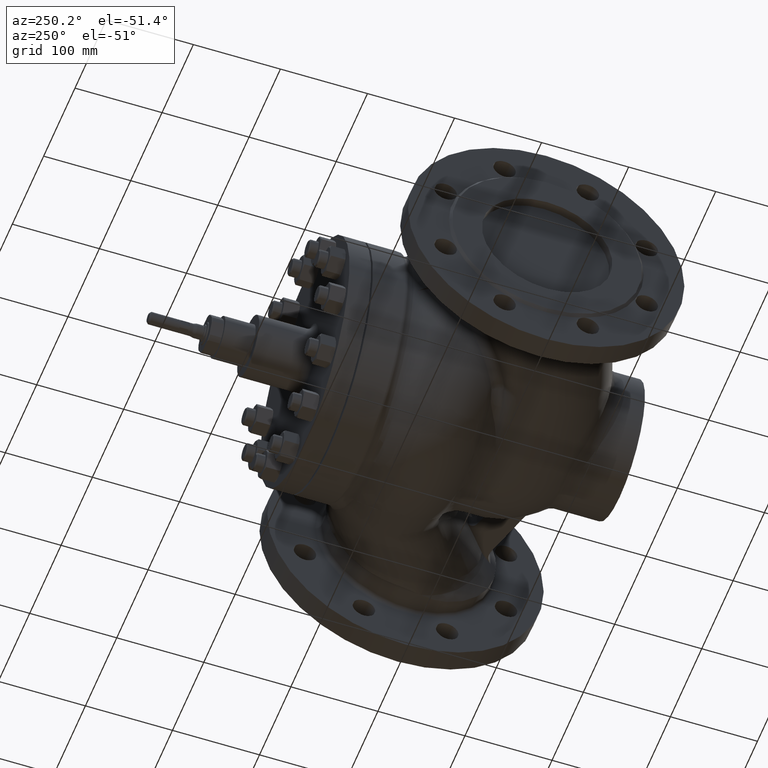
[diagram: clean part render]
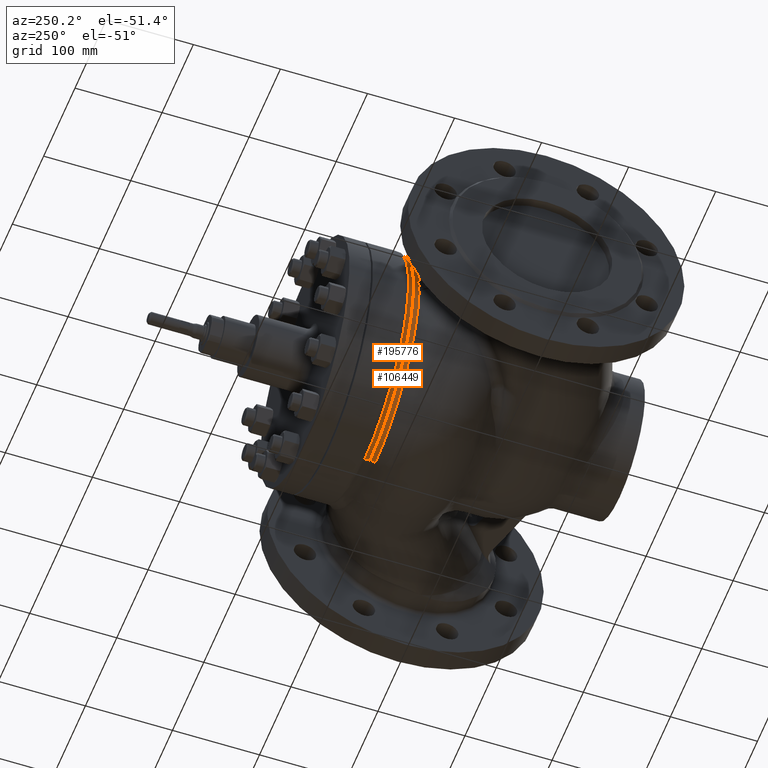
[diagram: same view with one multi-face feature highlighted, each face labeled with its STEP entity id]
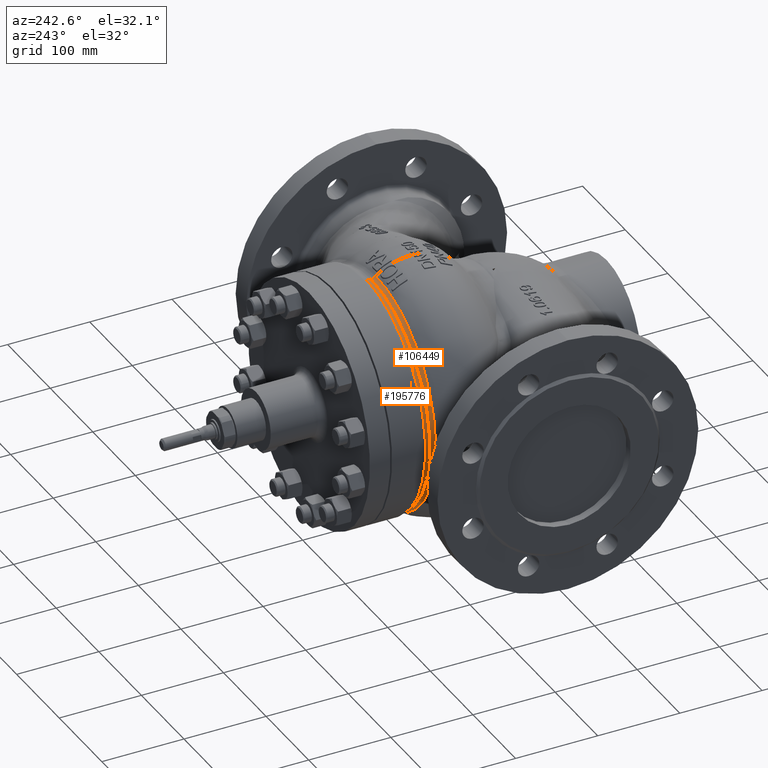
[diagram: same view with one multi-face feature highlighted, each face labeled with its STEP entity id]
A machine part, auxiliary view. The highlighted faces form ONE feature: a constant-radius fillet chain: 2 tangent blend faces with common blend radius 10 mm. The faces share edges in the B-rep.
A second angle (auxiliary view) of the same feature is appended — it is thin or edge-on in the first view.
Their STEP definitions:
[1] entity #106449 (Torus):
#28 = CARTESIAN_POINT ( 'NONE',  ( -139.4163269555714600, 112.6222677090639200, -7.500000000000000000 ) ) ;
#2465 = DIRECTION ( 'NONE',  ( 0.0000000000000000000, 0.0000000000000000000, 1.000000000000000000 ) ) ;
#4627 = CARTESIAN_POINT ( 'NONE',  ( 0.0000000000000000000, 117.0600714679255700, 148.5792709189137500 ) ) ;
#5024 = EDGE_CURVE ( 'NONE', #93388, #21869, #31355, .T. ) ;
#10320 = CARTESIAN_POINT ( 'NONE',  ( -140.3574335819797100, 111.0889785199827000, -7.500000000000000000 ) ) ;
#12947 = DIRECTION ( 'NONE',  ( 0.0000000000000000000, 0.0000000000000000000, 1.000000000000000000 ) ) ;
#12987 = ORIENTED_EDGE ( 'NONE', *, *, #73720, .F. ) ;
#18270 = EDGE_LOOP ( 'NONE', ( #129980, #82277, #144561, #49885, #12987, #26177, #143485, #149420, #175779 ) ) ;
#19089 = DIRECTION ( 'NONE',  ( 1.000000000000000000, 0.0000000000000000000, 1.224646799147353200E-016 ) ) ;
#20320 = DIRECTION ( 'NONE',  ( 0.0000000000000000000, 0.0000000000000000000, 1.000000000000000000 ) ) ;
#20964 = CIRCLE ( 'NONE', #122953, 10.00000000000000900 ) ;
#21387 = AXIS2_PLACEMENT_3D ( 'NONE', #189470, #110936, #2465 ) ;
#21869 = VERTEX_POINT ( 'NONE', #184158 ) ;
#22734 = CARTESIAN_POINT ( 'NONE',  ( -140.0087157920484100, 111.5795445097228200, 7.500000000000000900 ) ) ;
#26177 = ORIENTED_EDGE ( 'NONE', *, *, #74768, .F. ) ;
#27120 = CARTESIAN_POINT ( 'NONE',  ( -140.1995432107397300, 111.5700907105966500, -2.508708336358790100 ) ) ;
#30363 = CARTESIAN_POINT ( 'NONE',  ( 0.0000000000000000000, 111.0889785199827000, 140.5576720130204900 ) ) ;
#31355 = CIRCLE ( 'NONE', #52651, 138.5792709189137200 ) ;
#34822 = FACE_OUTER_BOUND ( 'NONE', #18270, .T. ) ;
#38438 = CARTESIAN_POINT ( 'NONE',  ( -139.5495879922406500, 112.3535592720482300, 7.500000000000000900 ) ) ;
#46045 = CARTESIAN_POINT ( 'NONE',  ( 0.0000000000000000000, 111.0889785199827000, 0.0000000000000000000 ) ) ;
#49885 = ORIENTED_EDGE ( 'NONE', *, *, #186894, .T. ) ;
#52651 = AXIS2_PLACEMENT_3D ( 'NONE', #122485, #182613, #183278 ) ;
#55500 = AXIS2_PLACEMENT_3D ( 'NONE', #4627, #113791, #20320 ) ;
#56525 = VERTEX_POINT ( 'NONE', #75444 ) ;
#58284 = B_SPLINE_CURVE_WITH_KNOTS ( 'NONE', 3,
 ( #82907, #114297, #161379, #67939 ),
 .UNSPECIFIED., .F., .F.,
 ( 4, 4 ),
 ( 0.01235766206393574200, 0.02009588435740006900 ),
 .UNSPECIFIED. ) ;
#61735 = DIRECTION ( 'NONE',  ( 0.0000000000000000000, 0.0000000000000000000, 1.000000000000000000 ) ) ;
#62187 = CARTESIAN_POINT ( 'NONE',  ( -140.3574335819797100, 111.0889785199827000, -7.500000000000000000 ) ) ;
#63133 = B_SPLINE_CURVE_WITH_KNOTS ( 'NONE', 3,
 ( #89855, #27120, #74193, #199041 ),
 .UNSPECIFIED., .F., .F.,
 ( 4, 4 ),
 ( -8.371953520916540100E-005, 0.007654502758255160600 ),
 .UNSPECIFIED. ) ;
#67939 = CARTESIAN_POINT ( 'NONE',  ( -140.5576720130204900, 111.0889785199827200, 0.0000000000000000000 ) ) ;
#69153 = CARTESIAN_POINT ( 'NONE',  ( -140.1783376294678200, 111.3292342450265600, 7.500000000000000000 ) ) ;
#69835 = CARTESIAN_POINT ( 'NONE',  ( 1.697106605590215500E-014, 117.0600714679255700, -138.5792709189137200 ) ) ;
#71013 = VERTEX_POINT ( 'NONE', #175050 ) ;
#73720 = EDGE_CURVE ( 'NONE', #128123, #110249, #63133, .T. ) ;
#74193 = CARTESIAN_POINT ( 'NONE',  ( -139.8177160344932900, 112.0830394263379000, -5.009677336422936600 ) ) ;
#74768 = EDGE_CURVE ( 'NONE', #76263, #128123, #58284, .T. ) ;
#75444 = CARTESIAN_POINT ( 'NONE',  ( -140.3574335819797100, 111.0889785199827000, 7.500000000000000000 ) ) ;
#76263 = VERTEX_POINT ( 'NONE', #77984 ) ;
#77826 = CARTESIAN_POINT ( 'NONE',  ( -140.0087157920484100, 111.5795445097228200, -7.500000000000000900 ) ) ;
#77984 = CARTESIAN_POINT ( 'NONE',  ( -139.4163269555714600, 112.6222677090639200, 7.500000000000000000 ) ) ;
#79408 = CARTESIAN_POINT ( 'NONE',  ( -140.5576720130204900, 111.0889785199827200, 0.0000000000000000000 ) ) ;
#82277 = ORIENTED_EDGE ( 'NONE', *, *, #159276, .T. ) ;
#82907 = CARTESIAN_POINT ( 'NONE',  ( -139.4163269555714600, 112.6222677090639200, 7.500000000000000000 ) ) ;
#89855 = CARTESIAN_POINT ( 'NONE',  ( -140.5576720130204900, 111.0889785199827200, 0.0000000000000000000 ) ) ;
#93271 = EDGE_CURVE ( 'NONE', #56525, #76263, #121208, .T. ) ;
#93388 = VERTEX_POINT ( 'NONE', #69835 ) ;
#93510 = CARTESIAN_POINT ( 'NONE',  ( -139.5495879922406500, 112.3535592720482300, -7.500000000000000900 ) ) ;
#99255 = EDGE_CURVE ( 'NONE', #56525, #142991, #115953, .T. ) ;
#103759 = VERTEX_POINT ( 'NONE', #10320 ) ;
#106425 = DIRECTION ( 'NONE',  ( -0.0000000000000000000, 1.000000000000000000, -0.0000000000000000000 ) ) ;
#106449 = ADVANCED_FACE ( 'NONE', ( #34822 ), #154423, .F. ) ;
#110120 = AXIS2_PLACEMENT_3D ( 'NONE', #199902, #106425, #12947 ) ;
#110249 = VERTEX_POINT ( 'NONE', #200540 ) ;
#110936 = DIRECTION ( 'NONE',  ( -0.0000000000000000000, 1.000000000000000000, -0.0000000000000000000 ) ) ;
#111209 = EDGE_CURVE ( 'NONE', #21869, #142991, #159165, .T. ) ;
#112553 = CARTESIAN_POINT ( 'NONE',  ( 1.819571285504951200E-014, 117.0600714679255700, -148.5792709189137500 ) ) ;
#113791 = DIRECTION ( 'NONE',  ( -1.000000000000000000, 0.0000000000000000000, 0.0000000000000000000 ) ) ;
#114297 = CARTESIAN_POINT ( 'NONE',  ( -139.8177160344932900, 112.0830394263379000, 5.009677336422936600 ) ) ;
#115953 = CIRCLE ( 'NONE', #110120, 140.5576720130204900 ) ;
#121208 = B_SPLINE_CURVE_WITH_KNOTS ( 'NONE', 3,
 ( #178313, #69153, #22734, #131905, #38438, #147569 ),
 .UNSPECIFIED., .F., .F.,
 ( 4, 2, 4 ),
 ( 0.06008810336374639100, 0.06097956328228885900, 0.06187102320083133500 ),
 .UNSPECIFIED. ) ;
#122485 = CARTESIAN_POINT ( 'NONE',  ( 0.0000000000000000000, 117.0600714679255700, 0.0000000000000000000 ) ) ;
#122953 = AXIS2_PLACEMENT_3D ( 'NONE', #112553, #19089, #128279 ) ;
#128123 = VERTEX_POINT ( 'NONE', #79408 ) ;
#128279 = DIRECTION ( 'NONE',  ( 1.224646799147355400E-016, 0.0000000000000000000, -1.000000000000000000 ) ) ;
#129980 = ORIENTED_EDGE ( 'NONE', *, *, #5024, .F. ) ;
#131905 = CARTESIAN_POINT ( 'NONE',  ( -139.6947075202864100, 112.0912672922824500, 7.500000000000000000 ) ) ;
#133366 = CIRCLE ( 'NONE', #183067, 140.5576720130204900 ) ;
#142991 = VERTEX_POINT ( 'NONE', #30363 ) ;
#143485 = ORIENTED_EDGE ( 'NONE', *, *, #93271, .F. ) ;
#144561 = ORIENTED_EDGE ( 'NONE', *, *, #156585, .T. ) ;
#147569 = CARTESIAN_POINT ( 'NONE',  ( -139.4163269555714600, 112.6222677090639200, 7.500000000000000000 ) ) ;
#149420 = ORIENTED_EDGE ( 'NONE', *, *, #99255, .T. ) ;
#154423 = TOROIDAL_SURFACE ( 'NONE', #21387, 148.5792709189137500, 10.00000000000002000 ) ;
#155187 = DIRECTION ( 'NONE',  ( -0.0000000000000000000, 1.000000000000000000, -0.0000000000000000000 ) ) ;
#156585 = EDGE_CURVE ( 'NONE', #71013, #103759, #133366, .T. ) ;
#159165 = CIRCLE ( 'NONE', #55500, 10.00000000000000900 ) ;
#159276 = EDGE_CURVE ( 'NONE', #93388, #71013, #20964, .T. ) ;
#161379 = CARTESIAN_POINT ( 'NONE',  ( -140.1995432107397300, 111.5700907105966500, 2.508708336358790500 ) ) ;
#171319 = CARTESIAN_POINT ( 'NONE',  ( -140.1783376294678200, 111.3292342450265600, -7.500000000000000000 ) ) ;
#175050 = CARTESIAN_POINT ( 'NONE',  ( 1.721335031263490400E-014, 111.0889785199827000, -140.5576720130204900 ) ) ;
#175779 = ORIENTED_EDGE ( 'NONE', *, *, #111209, .F. ) ;
#178313 = CARTESIAN_POINT ( 'NONE',  ( -140.3574335819797100, 111.0889785199827000, 7.500000000000000000 ) ) ;
#182613 = DIRECTION ( 'NONE',  ( -0.0000000000000000000, 1.000000000000000000, -0.0000000000000000000 ) ) ;
#183067 = AXIS2_PLACEMENT_3D ( 'NONE', #46045, #155187, #61735 ) ;
#183278 = DIRECTION ( 'NONE',  ( 0.0000000000000000000, 0.0000000000000000000, 1.000000000000000000 ) ) ;
#184158 = CARTESIAN_POINT ( 'NONE',  ( 0.0000000000000000000, 117.0600714679255700, 138.5792709189137200 ) ) ;
#186894 = EDGE_CURVE ( 'NONE', #103759, #110249, #187021, .T. ) ;
#187017 = CARTESIAN_POINT ( 'NONE',  ( -139.6947075202864100, 112.0912672922824500, -7.500000000000000000 ) ) ;
#187021 = B_SPLINE_CURVE_WITH_KNOTS ( 'NONE', 3,
 ( #62187, #171319, #77826, #187017, #93510, #28 ),
 .UNSPECIFIED., .F., .F.,
 ( 4, 2, 4 ),
 ( 0.06008810336374639100, 0.06097956328228885900, 0.06187102320083133500 ),
 .UNSPECIFIED. ) ;
#189470 = CARTESIAN_POINT ( 'NONE',  ( 0.0000000000000000000, 117.0600714679255700, 0.0000000000000000000 ) ) ;
#199041 = CARTESIAN_POINT ( 'NONE',  ( -139.4163269555714600, 112.6222677090639200, -7.500000000000000000 ) ) ;
#199902 = CARTESIAN_POINT ( 'NONE',  ( 0.0000000000000000000, 111.0889785199827000, 0.0000000000000000000 ) ) ;
#200540 = CARTESIAN_POINT ( 'NONE',  ( -139.4163269555714600, 112.6222677090639200, -7.500000000000000000 ) ) ;
[2] entity #195776 (Torus):
#5024 = EDGE_CURVE ( 'NONE', #93388, #21869, #31355, .T. ) ;
#6955 = DIRECTION ( 'NONE',  ( -0.0000000000000000000, 1.000000000000000000, -0.0000000000000000000 ) ) ;
#14654 = EDGE_CURVE ( 'NONE', #184446, #93388, #150585, .T. ) ;
#16225 = CARTESIAN_POINT ( 'NONE',  ( 1.819571285504951200E-014, 117.0600714679255700, -148.5792709189137500 ) ) ;
#21869 = VERTEX_POINT ( 'NONE', #184158 ) ;
#31355 = CIRCLE ( 'NONE', #52651, 138.5792709189137200 ) ;
#31951 = DIRECTION ( 'NONE',  ( 1.224646799147355400E-016, 0.0000000000000000000, -1.000000000000000000 ) ) ;
#35830 = EDGE_CURVE ( 'NONE', #169714, #184446, #42345, .T. ) ;
#42345 = CIRCLE ( 'NONE', #172159, 141.0297265945928300 ) ;
#42570 = TOROIDAL_SURFACE ( 'NONE', #67353, 148.5792709189137500, 10.00000000000002000 ) ;
#48664 = DIRECTION ( 'NONE',  ( 0.0000000000000000000, -1.000000000000000000, 0.0000000000000000000 ) ) ;
#52651 = AXIS2_PLACEMENT_3D ( 'NONE', #122485, #182613, #183278 ) ;
#63225 = DIRECTION ( 'NONE',  ( -1.000000000000000000, 0.0000000000000000000, 0.0000000000000000000 ) ) ;
#67353 = AXIS2_PLACEMENT_3D ( 'NONE', #131814, #6955, #177560 ) ;
#69835 = CARTESIAN_POINT ( 'NONE',  ( 1.697106605590215500E-014, 117.0600714679255700, -138.5792709189137200 ) ) ;
#70461 = EDGE_CURVE ( 'NONE', #169714, #21869, #134161, .T. ) ;
#93388 = VERTEX_POINT ( 'NONE', #69835 ) ;
#102119 = ORIENTED_EDGE ( 'NONE', *, *, #70461, .F. ) ;
#110777 = ORIENTED_EDGE ( 'NONE', *, *, #35830, .T. ) ;
#111767 = EDGE_LOOP ( 'NONE', ( #142061, #125589, #102119, #110777 ) ) ;
#120679 = FACE_OUTER_BOUND ( 'NONE', #111767, .T. ) ;
#122240 = CARTESIAN_POINT ( 'NONE',  ( 0.0000000000000000000, 123.6178439933421600, -141.0297265945928600 ) ) ;
#122485 = CARTESIAN_POINT ( 'NONE',  ( 0.0000000000000000000, 117.0600714679255700, 0.0000000000000000000 ) ) ;
#125410 = DIRECTION ( 'NONE',  ( 1.000000000000000000, 0.0000000000000000000, 1.224646799147353200E-016 ) ) ;
#125589 = ORIENTED_EDGE ( 'NONE', *, *, #5024, .T. ) ;
#131814 = CARTESIAN_POINT ( 'NONE',  ( 0.0000000000000000000, 117.0600714679255700, 0.0000000000000000000 ) ) ;
#134161 = CIRCLE ( 'NONE', #178184, 10.00000000000000900 ) ;
#142061 = ORIENTED_EDGE ( 'NONE', *, *, #14654, .T. ) ;
#142089 = CARTESIAN_POINT ( 'NONE',  ( 0.0000000000000000000, 123.6178439933421600, 0.0000000000000000000 ) ) ;
#150132 = CARTESIAN_POINT ( 'NONE',  ( 1.736118860685961400E-014, 123.6178439933421600, 141.0297265945928600 ) ) ;
#150585 = CIRCLE ( 'NONE', #162597, 10.00000000000000900 ) ;
#156653 = CARTESIAN_POINT ( 'NONE',  ( 0.0000000000000000000, 117.0600714679255700, 148.5792709189137500 ) ) ;
#157811 = DIRECTION ( 'NONE',  ( 0.0000000000000000000, 0.0000000000000000000, -1.000000000000000000 ) ) ;
#162597 = AXIS2_PLACEMENT_3D ( 'NONE', #16225, #125410, #31951 ) ;
#169714 = VERTEX_POINT ( 'NONE', #150132 ) ;
#172159 = AXIS2_PLACEMENT_3D ( 'NONE', #142089, #48664, #157811 ) ;
#172356 = DIRECTION ( 'NONE',  ( 0.0000000000000000000, 0.0000000000000000000, 1.000000000000000000 ) ) ;
#177560 = DIRECTION ( 'NONE',  ( 0.0000000000000000000, 0.0000000000000000000, 1.000000000000000000 ) ) ;
#178184 = AXIS2_PLACEMENT_3D ( 'NONE', #156653, #63225, #172356 ) ;
#182613 = DIRECTION ( 'NONE',  ( -0.0000000000000000000, 1.000000000000000000, -0.0000000000000000000 ) ) ;
#183278 = DIRECTION ( 'NONE',  ( 0.0000000000000000000, 0.0000000000000000000, 1.000000000000000000 ) ) ;
#184158 = CARTESIAN_POINT ( 'NONE',  ( 0.0000000000000000000, 117.0600714679255700, 138.5792709189137200 ) ) ;
#184446 = VERTEX_POINT ( 'NONE', #122240 ) ;
#195776 = ADVANCED_FACE ( 'NONE', ( #120679 ), #42570, .F. ) ;